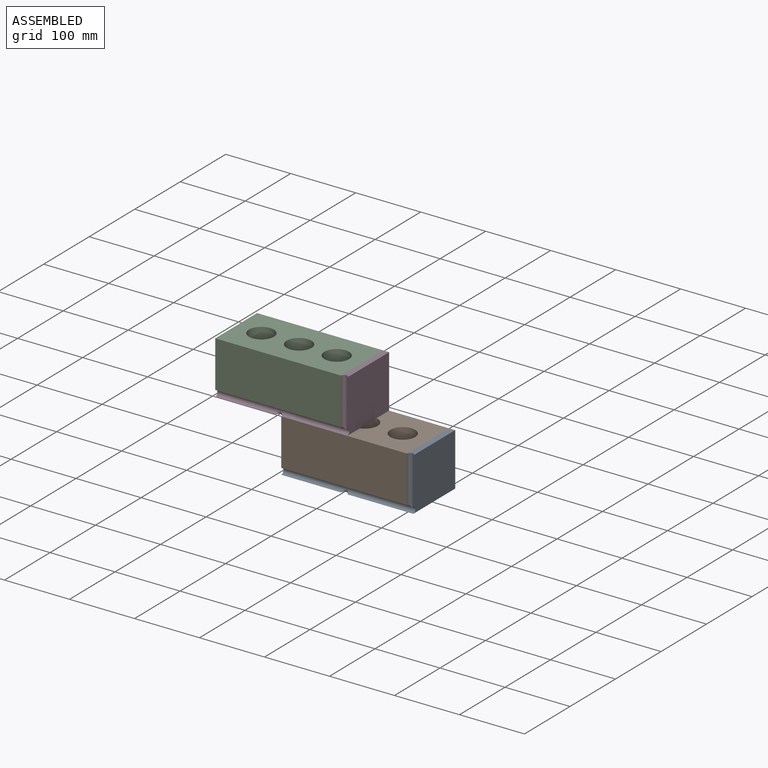
[diagram: assembled view]
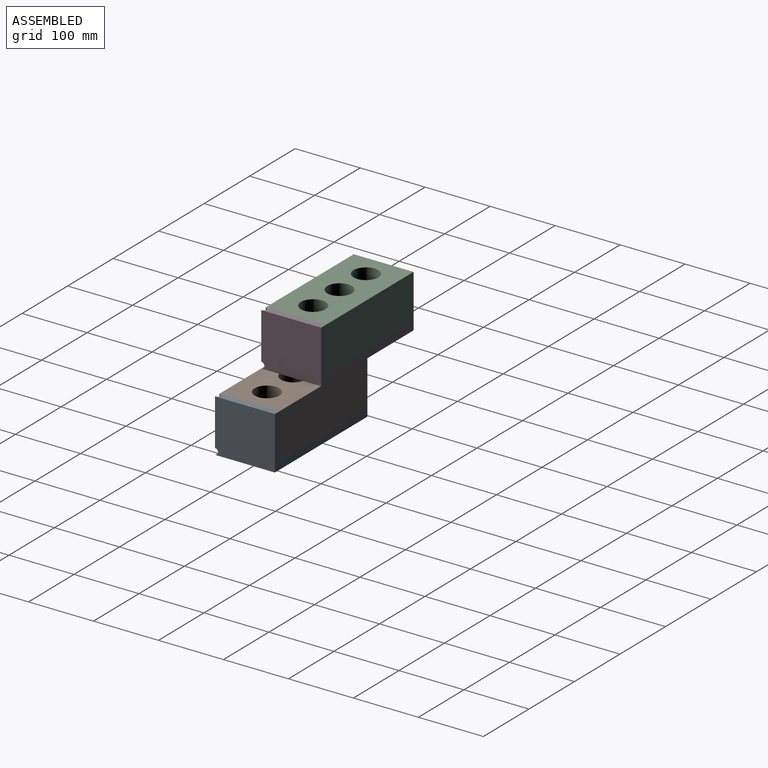
[diagram: assembled view, second angle]
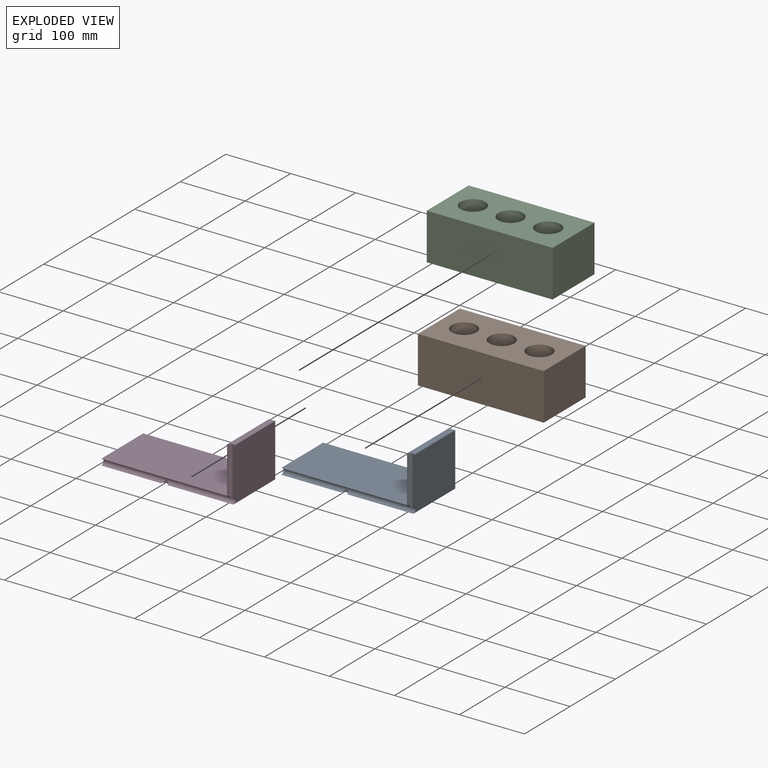
[diagram: exploded view]
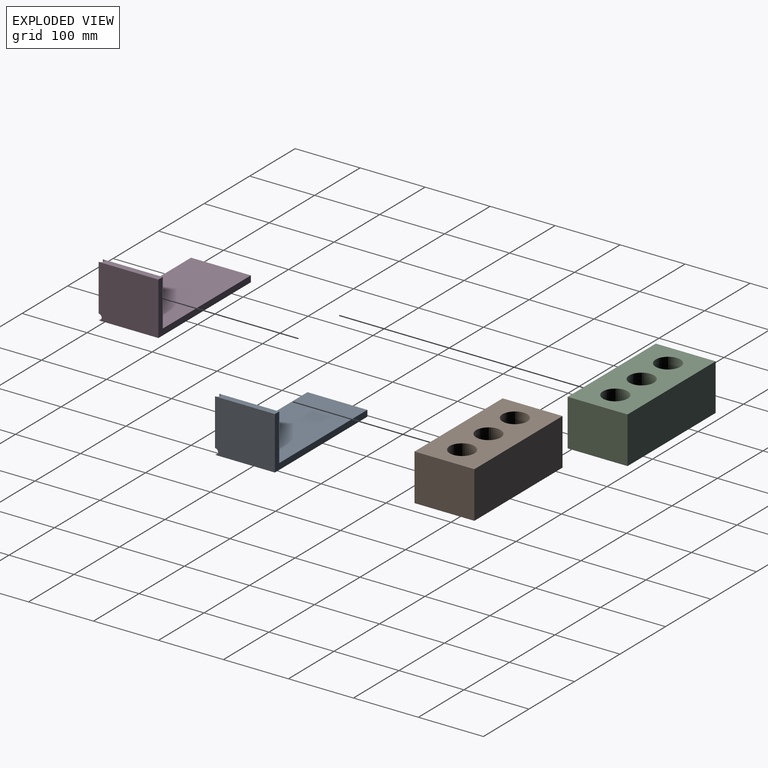
[diagram: exploded view, second angle]
ASSEMBLY  parts=4 mates=3
PART A: 10 faces, bbox 203.2x92.1x81.3 mm
  f0: plane 203.2x92.08mm, normal (0,0,-1), area 18674mm2, adj f1,f3,f6,f8,f9
  f1: plane 92.08x9.53mm, normal (-1,0,0), area 841.4mm2, adj f0,f5,f6,f8
  f2: plane 92.08x9.53mm, normal (0,0,1), area 841.4mm2, adj f3,f4,f6,f7
  f3: plane 92.08x81.28mm, normal (1,0,0), area 7448.2mm2, adj f0,f2,f6,f7,f8
  f4: plane 92.08x71.76mm, normal (-1,0,0), area 6606.8mm2, adj f2,f5,f6,f7
  f5: plane 193.68x92.08mm, normal (0,0,1), area 17832.6mm2, adj f1,f4,f6,f8
  f6: plane 203.2x81.28mm, normal (0,1,0), area 2618.9mm2, adj f0,f1,f2,f3,f4,f5
  f7: cylinder r=4.76mm len=76.52mm, axis (0,0,1), area 1099.5mm2, adj f2,f3,f4,f8
  f8: cylinder r=4.76mm len=203.2mm, axis (-1,0,0), area 2949.5mm2, adj f0,f1,f3,f5,f7,f9
  f9: cylinder r=4.76mm len=9.53mm, axis (0,0,-1), area 25.9mm2, adj f0,f8
PART B: 9 faces, bbox 193.7x92.1x71.8 mm
  f0: plane 193.68x92.08mm, normal (0,0,-1), area 14412.4mm2, adj f2,f3,f4,f5,f6,f7,f8
  f1: plane 193.68x92.08mm, normal (0,0,1), area 14412.4mm2, adj f2,f3,f4,f5,f6,f7,f8
  f2: plane 92.08x71.76mm, normal (1,0,0), area 6606.8mm2, adj f0,f1,f4,f5
  f3: plane 92.08x71.76mm, normal (-1,0,0), area 6606.8mm2, adj f0,f1,f4,f5
  f4: plane 193.68x71.76mm, normal (0,-1,0), area 13897.1mm2, adj f0,f1,f2,f3
  f5: plane 193.68x71.76mm, normal (0,1,0), area 13897.1mm2, adj f0,f1,f2,f3
  f6: cylinder r=19.05mm len=71.76mm, axis (0,0,1), area 8588.7mm2, adj f0,f1
  f7: cylinder r=19.05mm len=71.76mm, axis (0,0,1), area 8588.7mm2, adj f0,f1
  f8: cylinder r=19.05mm len=71.76mm, axis (0,0,1), area 8588.7mm2, adj f0,f1
PART C: same geometry as B
PART D: same geometry as A
PLACE A t=(58.67,39.84,-93.06)mm
PLACE B t=(58.67,39.84,-93.06)mm
PLACE C t=(-42.93,39.84,-11.78)mm
PLACE D t=(-42.93,39.84,-11.78)mm
MATE fastened B.f5 <-> A.f6  axis (0,1,0) through (205.89,39.84,-132.27)mm
MATE fastened C.f5 <-> D.f6  axis (0,1,0) through (104.29,39.84,-50.99)mm
MATE fastened B.f5 <-> D.f6  axis (0,1,0) through (12.22,39.84,-60.51)mm
